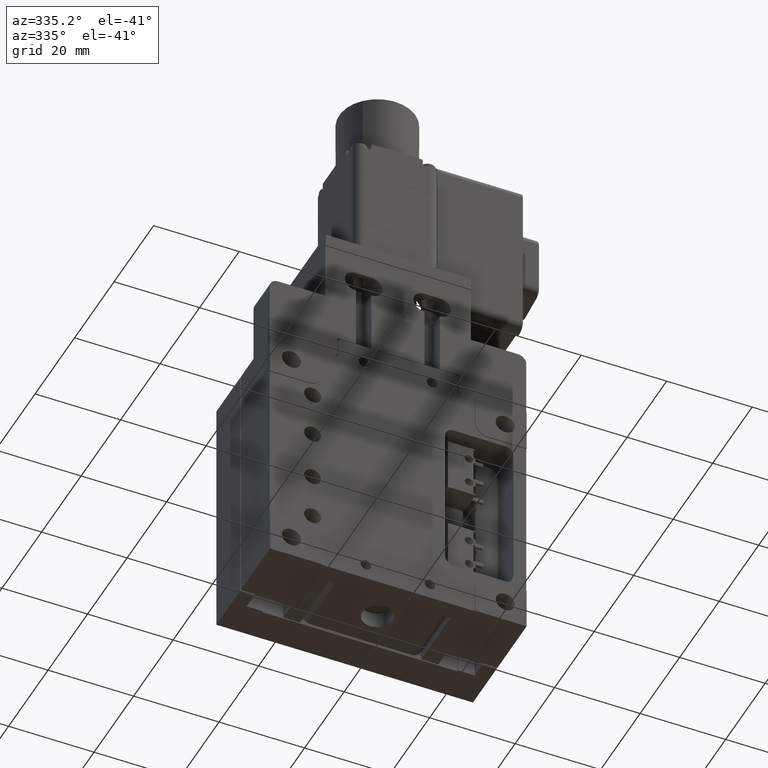
[diagram: clean part render]
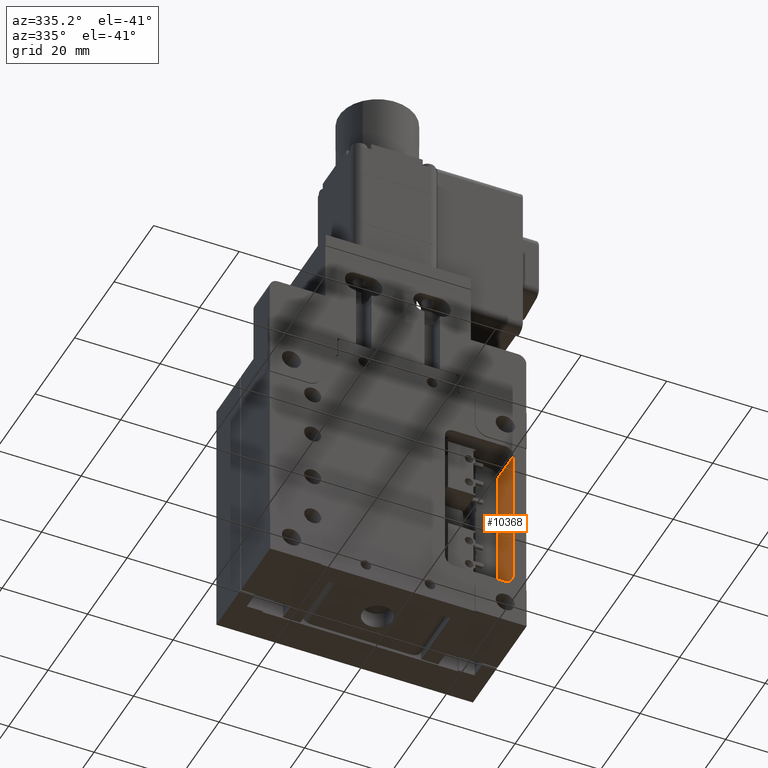
[diagram: same view with one face highlighted and labeled with its STEP entity id]
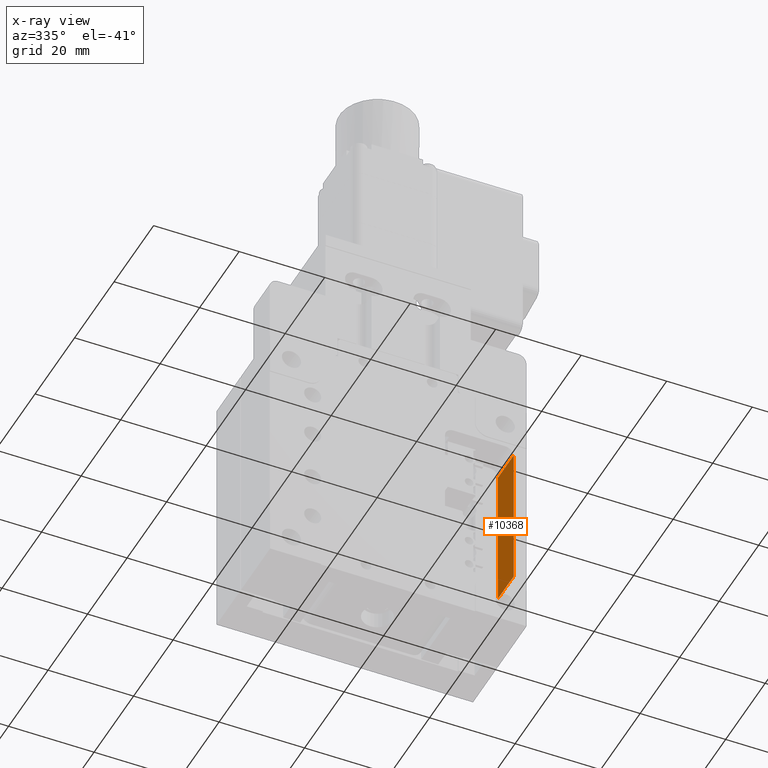
[diagram: x-ray of the same camera — body ghosted, the highlighted face saturated]
A machine part, auxiliary view. The second image highlights one B-rep face of the part: STEP entity #10368.
The next image is the same camera in x-ray: the body ghosted, the highlighted face saturated — about 0% of this face is hidden behind the body in this view.
In plain terms, the highlighted planar face has unit normal (1, -0, 0).
Its self-contained STEP definition (entity closure, byte-faithful):
#800 = DIRECTION ( 'NONE',  ( 0.000000000000000000, 0.000000000000000000, 1.000000000000000000 ) ) ;
#2208 = CARTESIAN_POINT ( 'NONE',  ( 24.40828040119247788, -5.098187545986029079, 79.50000000000000000 ) ) ;
#2642 = PLANE ( 'NONE',  #3495 ) ;
#2854 = VECTOR ( 'NONE', #11406, 1000.000000000000000 ) ;
#2996 = VECTOR ( 'NONE', #17864, 1000.000000000000000 ) ;
#3133 = VERTEX_POINT ( 'NONE', #12263 ) ;
#3321 = ORIENTED_EDGE ( 'NONE', *, *, #4854, .F. ) ;
#3495 = AXIS2_PLACEMENT_3D ( 'NONE', #11235, #12639, #4136 ) ;
#3861 = EDGE_CURVE ( 'NONE', #15227, #7283, #13507, .T. ) ;
#4136 = DIRECTION ( 'NONE',  ( 0.000000000000000000, 0.000000000000000000, -1.000000000000000000 ) ) ;
#4256 = CARTESIAN_POINT ( 'NONE',  ( 24.40828040119247788, -5.098187545986029079, 45.50000000000000000 ) ) ;
#4854 = EDGE_CURVE ( 'NONE', #7283, #3133, #8603, .T. ) ;
#5432 = DIRECTION ( 'NONE',  ( 0.000000000000000000, 0.000000000000000000, -1.000000000000000000 ) ) ;
#5708 = VERTEX_POINT ( 'NONE', #8245 ) ;
#5774 = EDGE_CURVE ( 'NONE', #3133, #5708, #12352, .T. ) ;
#6057 = ORIENTED_EDGE ( 'NONE', *, *, #5774, .F. ) ;
#7283 = VERTEX_POINT ( 'NONE', #12993 ) ;
#7295 = VECTOR ( 'NONE', #800, 1000.000000000000000 ) ;
#8245 = CARTESIAN_POINT ( 'NONE',  ( 24.40828040119247788, -12.89818754598603157, 45.50000000000000000 ) ) ;
#8603 = LINE ( 'NONE', #18495, #2854 ) ;
#10368 = ADVANCED_FACE ( 'NONE', ( #16829 ), #2642, .F. ) ;
#10413 = ORIENTED_EDGE ( 'NONE', *, *, #3861, .F. ) ;
#11235 = CARTESIAN_POINT ( 'NONE',  ( 24.40828040119247788, 33.11175880309956909, 79.50000000000000000 ) ) ;
#11406 = DIRECTION ( 'NONE',  ( -0.000000000000000000, -1.000000000000000000, -0.000000000000000000 ) ) ;
#12263 = CARTESIAN_POINT ( 'NONE',  ( 24.40828040119247788, -12.89818754598603157, 79.50000000000000000 ) ) ;
#12352 = LINE ( 'NONE', #17951, #14933 ) ;
#12639 = DIRECTION ( 'NONE',  ( 1.000000000000000000, -0.000000000000000000, 0.000000000000000000 ) ) ;
#12993 = CARTESIAN_POINT ( 'NONE',  ( 24.40828040119247788, -5.098187545986029079, 79.50000000000000000 ) ) ;
#13507 = LINE ( 'NONE', #2208, #7295 ) ;
#13577 = LINE ( 'NONE', #14599, #2996 ) ;
#14599 = CARTESIAN_POINT ( 'NONE',  ( 24.40828040119247788, 33.11175880309956909, 45.50000000000000000 ) ) ;
#14680 = ORIENTED_EDGE ( 'NONE', *, *, #15348, .T. ) ;
#14933 = VECTOR ( 'NONE', #5432, 1000.000000000000000 ) ;
#15227 = VERTEX_POINT ( 'NONE', #4256 ) ;
#15348 = EDGE_CURVE ( 'NONE', #15227, #5708, #13577, .T. ) ;
#16829 = FACE_OUTER_BOUND ( 'NONE', #18042, .T. ) ;
#17864 = DIRECTION ( 'NONE',  ( -0.000000000000000000, -1.000000000000000000, -0.000000000000000000 ) ) ;
#17951 = CARTESIAN_POINT ( 'NONE',  ( 24.40828040119247788, -12.89818754598602979, 62.50000000000000000 ) ) ;
#18042 = EDGE_LOOP ( 'NONE', ( #3321, #10413, #14680, #6057 ) ) ;
#18495 = CARTESIAN_POINT ( 'NONE',  ( 24.40828040119247788, 33.11175880309956909, 79.50000000000000000 ) ) ;